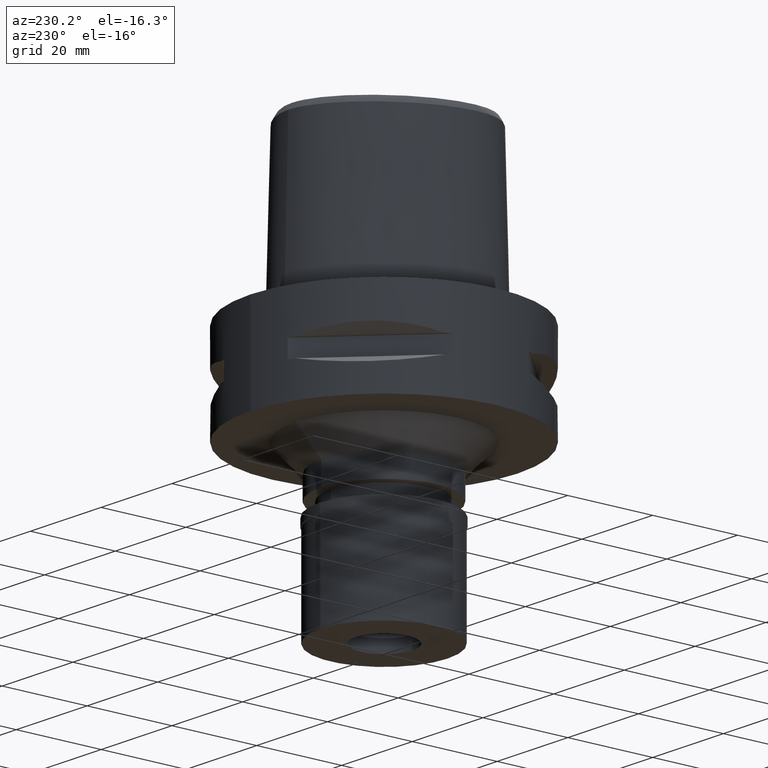
[diagram: clean part render]
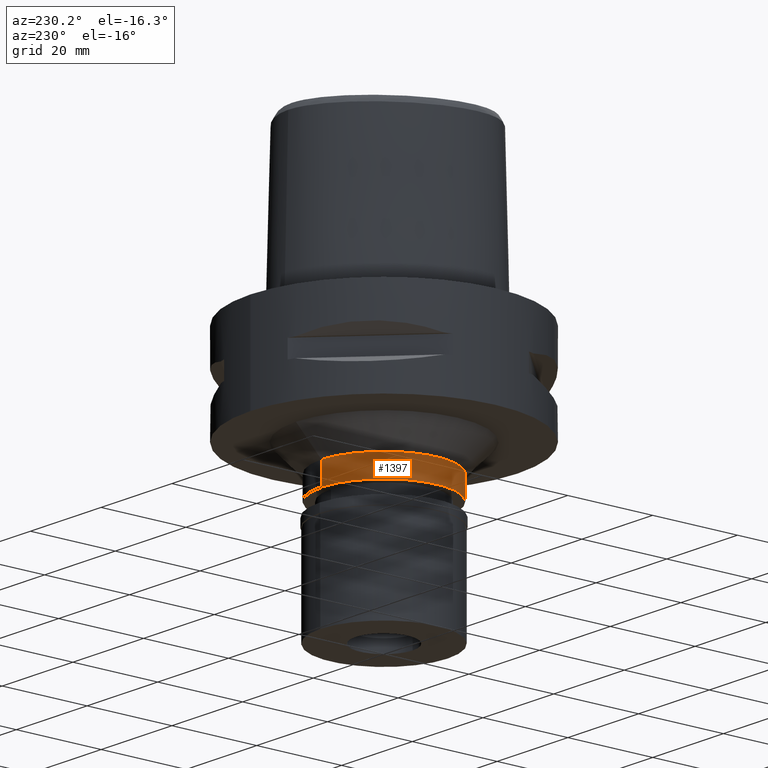
[diagram: same view with one face highlighted and labeled with its STEP entity id]
A machine part, auxiliary view. The second image highlights one B-rep face of the part: STEP entity #1397.
In plain terms, the highlighted cylindrical surface (partial cylindrical patch) has radius 14.75 mm, axis along (0, 0, -1).
Its self-contained STEP definition (entity closure, byte-faithful):
#65 = DIRECTION ( 'NONE',  ( 0.0000000000000000000, 0.0000000000000000000, -1.000000000000000000 ) ) ;
#79 = AXIS2_PLACEMENT_3D ( 'NONE', #2411, #3881, #168 ) ;
#146 = EDGE_CURVE ( 'NONE', #2502, #1337, #1596, .T. ) ;
#168 = DIRECTION ( 'NONE',  ( 0.0000000000000000000, 1.000000000000000000, 0.0000000000000000000 ) ) ;
#443 = DIRECTION ( 'NONE',  ( 0.0000000000000000000, 0.0000000000000000000, -1.000000000000000000 ) ) ;
#504 = DIRECTION ( 'NONE',  ( 0.0000000000000000000, -1.000000000000000000, 0.0000000000000000000 ) ) ;
#527 = ORIENTED_EDGE ( 'NONE', *, *, #1964, .T. ) ;
#666 = ORIENTED_EDGE ( 'NONE', *, *, #4035, .T. ) ;
#779 = FACE_OUTER_BOUND ( 'NONE', #2247, .T. ) ;
#788 = CIRCLE ( 'NONE', #79, 14.75000000000000000 ) ;
#1092 = CARTESIAN_POINT ( 'NONE',  ( 0.0000000000000000000, -14.75000000000000000, -28.00000000000000000 ) ) ;
#1095 = CARTESIAN_POINT ( 'NONE',  ( 0.0000000000000000000, 14.75000000000000000, -33.20000000000000284 ) ) ;
#1171 = ORIENTED_EDGE ( 'NONE', *, *, #146, .T. ) ;
#1337 = VERTEX_POINT ( 'NONE', #1095 ) ;
#1397 = ADVANCED_FACE ( 'NONE', ( #779 ), #2729, .T. ) ;
#1488 = EDGE_CURVE ( 'NONE', #4216, #1608, #4519, .T. ) ;
#1491 = DIRECTION ( 'NONE',  ( 0.0000000000000000000, 0.0000000000000000000, -1.000000000000000000 ) ) ;
#1596 = LINE ( 'NONE', #3088, #2529 ) ;
#1605 = DIRECTION ( 'NONE',  ( 0.0000000000000000000, 0.0000000000000000000, -1.000000000000000000 ) ) ;
#1608 = VERTEX_POINT ( 'NONE', #3041 ) ;
#1660 = CIRCLE ( 'NONE', #3138, 14.75000000000000000 ) ;
#1964 = EDGE_CURVE ( 'NONE', #4216, #2502, #1660, .T. ) ;
#1969 = CARTESIAN_POINT ( 'NONE',  ( 0.0000000000000000000, 0.0000000000000000000, 2.500000000000000000 ) ) ;
#2113 = ORIENTED_EDGE ( 'NONE', *, *, #1488, .F. ) ;
#2247 = EDGE_LOOP ( 'NONE', ( #666, #2113, #527, #1171 ) ) ;
#2340 = CARTESIAN_POINT ( 'NONE',  ( 0.0000000000000000000, -14.75000000000000000, -28.00000000000000000 ) ) ;
#2411 = CARTESIAN_POINT ( 'NONE',  ( 0.0000000000000000000, 0.0000000000000000000, -33.20000000000000284 ) ) ;
#2502 = VERTEX_POINT ( 'NONE', #3510 ) ;
#2529 = VECTOR ( 'NONE', #443, 1000.000000000000000 ) ;
#2729 = CYLINDRICAL_SURFACE ( 'NONE', #4526, 14.75000000000000000 ) ;
#3028 = DIRECTION ( 'NONE',  ( 0.0000000000000000000, -1.000000000000000000, 0.0000000000000000000 ) ) ;
#3041 = CARTESIAN_POINT ( 'NONE',  ( 0.0000000000000000000, -14.75000000000000000, -33.20000000000000284 ) ) ;
#3088 = CARTESIAN_POINT ( 'NONE',  ( 0.0000000000000000000, 14.75000000000000000, -28.00000000000000000 ) ) ;
#3138 = AXIS2_PLACEMENT_3D ( 'NONE', #4439, #1491, #3028 ) ;
#3510 = CARTESIAN_POINT ( 'NONE',  ( 0.0000000000000000000, 14.75000000000000000, -28.00000000000000000 ) ) ;
#3881 = DIRECTION ( 'NONE',  ( 0.0000000000000000000, 0.0000000000000000000, 1.000000000000000000 ) ) ;
#3985 = VECTOR ( 'NONE', #1605, 1000.000000000000000 ) ;
#4035 = EDGE_CURVE ( 'NONE', #1337, #1608, #788, .T. ) ;
#4216 = VERTEX_POINT ( 'NONE', #1092 ) ;
#4439 = CARTESIAN_POINT ( 'NONE',  ( 0.0000000000000000000, 0.0000000000000000000, -28.00000000000000000 ) ) ;
#4519 = LINE ( 'NONE', #2340, #3985 ) ;
#4526 = AXIS2_PLACEMENT_3D ( 'NONE', #1969, #65, #504 ) ;